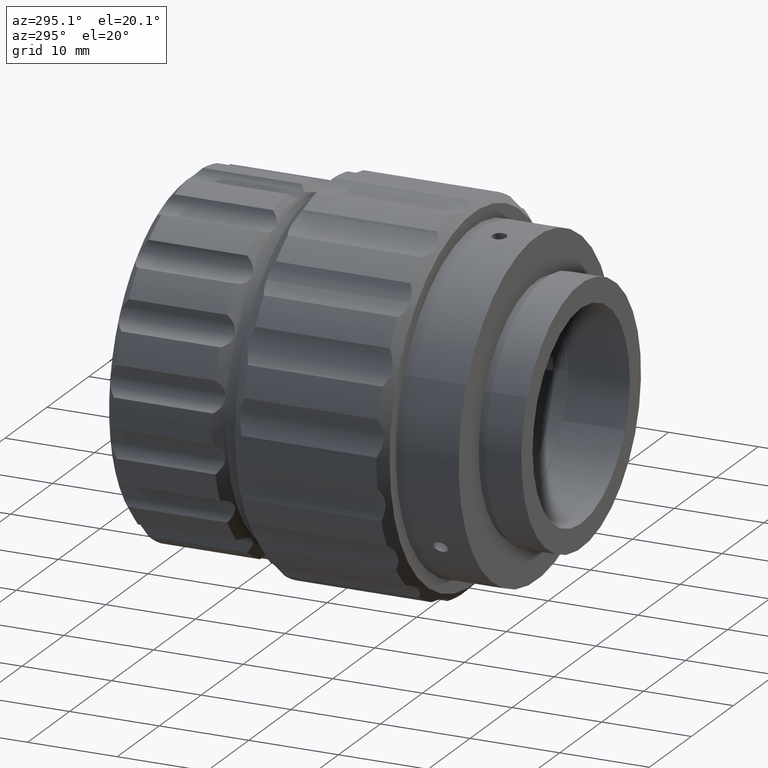
[diagram: clean part render]
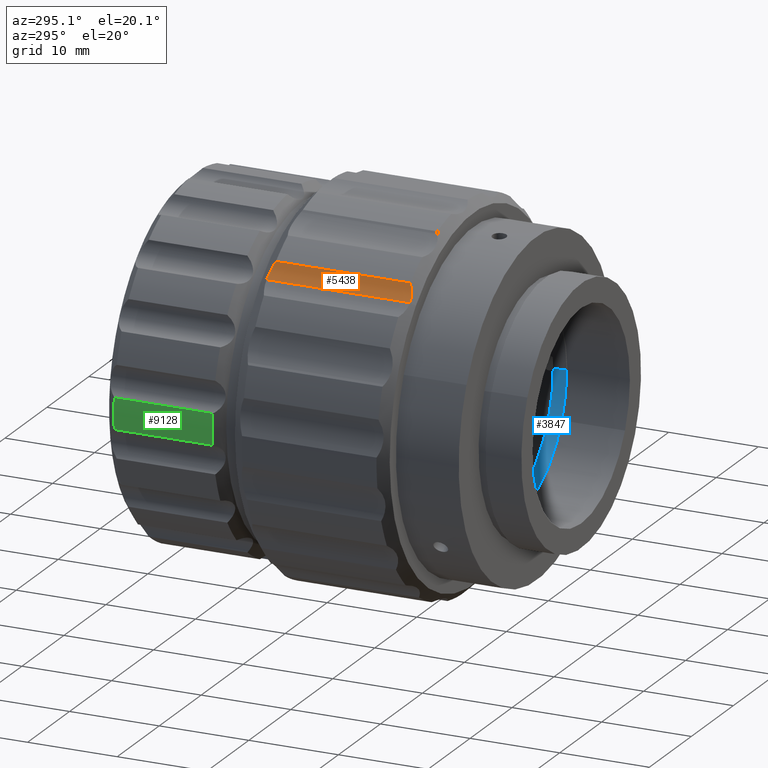
[diagram: same view with three faces highlighted in distinct colors, each labeled with its STEP entity id]
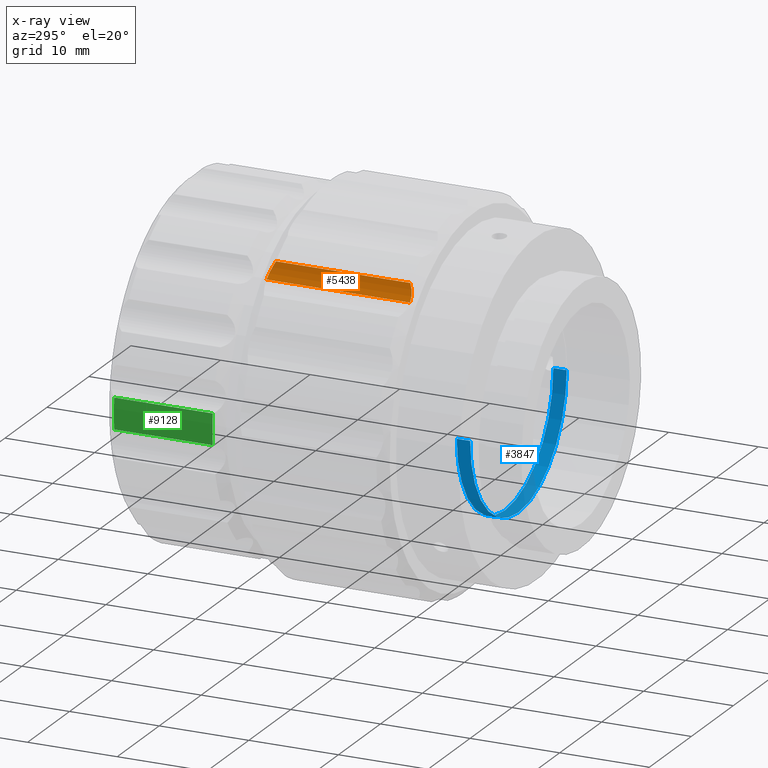
[diagram: x-ray of the same camera — body ghosted, the three highlighted faces saturated]
A machine part, auxiliary view with three faces highlighted in distinct colors.
The next image is the same camera in x-ray (body ghosted, the three faces saturated) — at least one of them is partly hidden behind the body in this view.
Their STEP definitions:

[orange] entity #5438 — the highlighted cylindrical surface (partial cylindrical patch) has radius 5 mm, axis along (0, -1, -0).
#755 = CARTESIAN_POINT ( 'NONE',  ( -7.086710590305400181, -22.70210709760292289, 61.15566884071682807 ) ) ;
#977 = ORIENTED_EDGE ( 'NONE', *, *, #3993, .F. ) ;
#1002 = VERTEX_POINT ( 'NONE', #9922 ) ;
#1020 = CARTESIAN_POINT ( 'NONE',  ( -11.55182014399925805, -5.548755687005420434, 63.42832213261696950 ) ) ;
#1035 = CARTESIAN_POINT ( 'NONE',  ( -7.342518284855121813, -7.226082744462514640, 60.72450665959426885 ) ) ;
#1280 = ORIENTED_EDGE ( 'NONE', *, *, #9576, .F. ) ;
#1531 = VECTOR ( 'NONE', #3739, 1000.000000000000000 ) ;
#1565 = EDGE_CURVE ( 'NONE', #3359, #7291, #3432, .T. ) ;
#1573 = CARTESIAN_POINT ( 'NONE',  ( -6.960196484679470608, -14.54875568700542310, 61.44918288254518046 ) ) ;
#1725 = AXIS2_PLACEMENT_3D ( 'NONE', #1020, #2581, #5652 ) ;
#1827 = CARTESIAN_POINT ( 'NONE',  ( -7.535676544969944324, -7.139301906468576320, 60.44513074661319507 ) ) ;
#2546 = CARTESIAN_POINT ( 'NONE',  ( -7.640146203299665650, -7.105848258127113404, 60.30919233671716029 ) ) ;
#2581 = DIRECTION ( 'NONE',  ( 0.000000000000000000, -1.000000000000000000, -0.000000000000000000 ) ) ;
#2747 = CARTESIAN_POINT ( 'NONE',  ( -7.988616398413262765, -7.048755687005429316, 59.91630762903419338 ) ) ;
#3172 = B_SPLINE_CURVE_WITH_KNOTS ( 'NONE', 3,
 ( #9721, #2747, #5048, #2546, #1827, #1035, #7252, #5816, #5616, #4117 ),
 .UNSPECIFIED., .F., .F.,
 ( 4, 2, 2, 2, 4 ),
 ( 0.002105251945247678131, 0.002629423891572691633, 0.003153595837897702966, 0.003677767784222714734, 0.004201939730547726501 ),
 .UNSPECIFIED. ) ;
#3359 = VERTEX_POINT ( 'NONE', #9271 ) ;
#3425 = VECTOR ( 'NONE', #9254, 1000.000000000000000 ) ;
#3432 = LINE ( 'NONE', #6713, #1531 ) ;
#3600 = B_SPLINE_CURVE_WITH_KNOTS ( 'NONE', 3,
 ( #6919, #755, #5994, #3737, #10053, #4486, #7590, #4432 ),
 .UNSPECIFIED., .F., .F.,
 ( 4, 2, 2, 4 ),
 ( 4.574723477181721011E-07, 0.001052854708797686329, 0.001579053327022678001, 0.002105251945247671626 ),
 .UNSPECIFIED. ) ;
#3737 = CARTESIAN_POINT ( 'NONE',  ( -7.535760267474191032, -22.95831360585714620, 60.44493480536283414 ) ) ;
#3739 = DIRECTION ( 'NONE',  ( 0.000000000000000000, -1.000000000000000000, -0.000000000000000000 ) ) ;
#3993 = EDGE_CURVE ( 'NONE', #6778, #1002, #10027, .T. ) ;
#4117 = CARTESIAN_POINT ( 'NONE',  ( -6.960196484679465279, -7.548755687005425763, 61.44918288254517336 ) ) ;
#4171 = EDGE_CURVE ( 'NONE', #3359, #6778, #3172, .T. ) ;
#4262 = EDGE_LOOP ( 'NONE', ( #6091, #9726, #1280, #977 ) ) ;
#4432 = CARTESIAN_POINT ( 'NONE',  ( -8.115835603153543687, -23.04875568700585120, 59.79596611550180540 ) ) ;
#4486 = CARTESIAN_POINT ( 'NONE',  ( -7.867960086869544512, -23.03724811655154525, 60.04316534937562722 ) ) ;
#4742 = FACE_OUTER_BOUND ( 'NONE', #4262, .T. ) ;
#5048 = CARTESIAN_POINT ( 'NONE',  ( -7.866001391819120059, -7.060509283708027439, 60.04529038164336896 ) ) ;
#5438 = ADVANCED_FACE ( 'NONE', ( #4742 ), #5600, .F. ) ;
#5600 = CYLINDRICAL_SURFACE ( 'NONE', #1725, 4.999999999999992895 ) ;
#5616 = CARTESIAN_POINT ( 'NONE',  ( -7.023272961974723394, -7.472298862520191598, 61.30284479871156122 ) ) ;
#5652 = DIRECTION ( 'NONE',  ( 0.6871969081691016168, 0.000000000000000000, -0.7264712034229761084 ) ) ;
#5816 = CARTESIAN_POINT ( 'NONE',  ( -7.094199903130694373, -7.402814724860927065, 61.15745762860290569 ) ) ;
#5994 = CARTESIAN_POINT ( 'NONE',  ( -7.243644349763088464, -22.82687343875511132, 60.86766424235284489 ) ) ;
#6091 = ORIENTED_EDGE ( 'NONE', *, *, #4171, .F. ) ;
#6713 = CARTESIAN_POINT ( 'NONE',  ( -8.115835603153755073, -5.548755687005420434, 59.79596611550208962 ) ) ;
#6778 = VERTEX_POINT ( 'NONE', #9248 ) ;
#6919 = CARTESIAN_POINT ( 'NONE',  ( -6.960196484679476825, -22.54875568700542843, 61.44918288254516625 ) ) ;
#7252 = CARTESIAN_POINT ( 'NONE',  ( -7.253546361225876815, -7.279775078401297783, 60.86862560847289672 ) ) ;
#7291 = VERTEX_POINT ( 'NONE', #7946 ) ;
#7590 = CARTESIAN_POINT ( 'NONE',  ( -7.988124514806902887, -23.04875568700542132, 59.91677292055827309 ) ) ;
#7946 = CARTESIAN_POINT ( 'NONE',  ( -8.115835603153543687, -23.04875568700585120, 59.79596611550180540 ) ) ;
#9248 = CARTESIAN_POINT ( 'NONE',  ( -6.960196484679465279, -7.548755687005425763, 61.44918288254517336 ) ) ;
#9254 = DIRECTION ( 'NONE',  ( 0.000000000000000000, -1.000000000000000000, -0.000000000000000000 ) ) ;
#9271 = CARTESIAN_POINT ( 'NONE',  ( -8.115835603153483291, -7.048755687004994996, 59.79596611550186225 ) ) ;
#9576 = EDGE_CURVE ( 'NONE', #1002, #7291, #3600, .T. ) ;
#9721 = CARTESIAN_POINT ( 'NONE',  ( -8.115835603153483291, -7.048755687004994996, 59.79596611550186225 ) ) ;
#9726 = ORIENTED_EDGE ( 'NONE', *, *, #1565, .T. ) ;
#9922 = CARTESIAN_POINT ( 'NONE',  ( -6.960196484679476825, -22.54875568700542843, 61.44918288254516625 ) ) ;
#10027 = LINE ( 'NONE', #1573, #3425 ) ;
#10053 = CARTESIAN_POINT ( 'NONE',  ( -7.642140704346006785, -22.99220811342353343, 60.30670107188694118 ) ) ;

[blue] entity #3847 — the highlighted cylindrical surface (partial cylindrical patch) has radius 11.5 mm, axis along (0, -1, 0).
#122 = CARTESIAN_POINT ( 'NONE',  ( 17.47169922217136673, -28.54875568700542843, 44.89688622334482915 ) ) ;
#165 = DIRECTION ( 'NONE',  ( 0.000000000000000000, -1.000000000000000000, 0.000000000000000000 ) ) ;
#284 = DIRECTION ( 'NONE',  ( 0.000000000000000000, -1.000000000000000000, 0.000000000000000000 ) ) ;
#631 = CARTESIAN_POINT ( 'NONE',  ( -5.528297193545712140, -27.04875568700542487, 44.90972666731730811 ) ) ;
#718 = CARTESIAN_POINT ( 'NONE',  ( 17.47169922217136673, -27.04875568700542487, 44.89688622334482915 ) ) ;
#1117 = ORIENTED_EDGE ( 'NONE', *, *, #8828, .T. ) ;
#1398 = CARTESIAN_POINT ( 'NONE',  ( -5.528297193545712140, -28.54875568700542843, 44.90972666731730811 ) ) ;
#1687 = VECTOR ( 'NONE', #8655, 1000.000000000000000 ) ;
#1766 = DIRECTION ( 'NONE',  ( -0.9999998441616122502, 0.000000000000000000, 0.0005582801727166891237 ) ) ;
#1993 = EDGE_CURVE ( 'NONE', #9227, #2068, #4950, .T. ) ;
#2068 = VERTEX_POINT ( 'NONE', #122 ) ;
#2372 = VERTEX_POINT ( 'NONE', #631 ) ;
#2379 = DIRECTION ( 'NONE',  ( 0.000000000000000000, -1.000000000000000000, 0.000000000000000000 ) ) ;
#2471 = ORIENTED_EDGE ( 'NONE', *, *, #1993, .F. ) ;
#2492 = LINE ( 'NONE', #8745, #7421 ) ;
#2653 = DIRECTION ( 'NONE',  ( -0.9999998441616122502, 0.000000000000000000, 0.0005582801727166891237 ) ) ;
#3504 = CYLINDRICAL_SURFACE ( 'NONE', #5014, 11.50000000000000000 ) ;
#3557 = DIRECTION ( 'NONE',  ( -0.9999998441616122502, 0.000000000000000000, 0.0005582801727166891237 ) ) ;
#3561 = CIRCLE ( 'NONE', #7115, 11.50000000000000000 ) ;
#3847 = ADVANCED_FACE ( 'NONE', ( #6732 ), #3504, .F. ) ;
#4022 = ORIENTED_EDGE ( 'NONE', *, *, #5375, .F. ) ;
#4950 = LINE ( 'NONE', #8075, #1687 ) ;
#5014 = AXIS2_PLACEMENT_3D ( 'NONE', #9871, #8850, #3557 ) ;
#5375 = EDGE_CURVE ( 'NONE', #2372, #9227, #9203, .T. ) ;
#6522 = VERTEX_POINT ( 'NONE', #1398 ) ;
#6732 = FACE_OUTER_BOUND ( 'NONE', #8002, .T. ) ;
#6912 = AXIS2_PLACEMENT_3D ( 'NONE', #7235, #2379, #1766 ) ;
#7115 = AXIS2_PLACEMENT_3D ( 'NONE', #8035, #284, #2653 ) ;
#7235 = CARTESIAN_POINT ( 'NONE',  ( 5.971701014312827738, -27.04875568700542487, 44.90330644533106863 ) ) ;
#7421 = VECTOR ( 'NONE', #165, 1000.000000000000000 ) ;
#7704 = EDGE_CURVE ( 'NONE', #2372, #6522, #2492, .T. ) ;
#8002 = EDGE_LOOP ( 'NONE', ( #2471, #4022, #9464, #1117 ) ) ;
#8035 = CARTESIAN_POINT ( 'NONE',  ( 5.971701014312827738, -28.54875568700542843, 44.90330644533106863 ) ) ;
#8075 = CARTESIAN_POINT ( 'NONE',  ( 17.47169922217136673, -28.54875568700542843, 44.89688622334482915 ) ) ;
#8655 = DIRECTION ( 'NONE',  ( 0.000000000000000000, -1.000000000000000000, 0.000000000000000000 ) ) ;
#8745 = CARTESIAN_POINT ( 'NONE',  ( -5.528297193545712140, -28.54875568700542843, 44.90972666731730811 ) ) ;
#8828 = EDGE_CURVE ( 'NONE', #6522, #2068, #3561, .T. ) ;
#8850 = DIRECTION ( 'NONE',  ( 0.000000000000000000, -1.000000000000000000, 0.000000000000000000 ) ) ;
#9203 = CIRCLE ( 'NONE', #6912, 11.50000000000000000 ) ;
#9227 = VERTEX_POINT ( 'NONE', #718 ) ;
#9464 = ORIENTED_EDGE ( 'NONE', *, *, #7704, .T. ) ;
#9871 = CARTESIAN_POINT ( 'NONE',  ( 5.971701014312827738, -28.54875568700542843, 44.90330644533106863 ) ) ;

[green] entity #9128 — the highlighted cylindrical surface (partial cylindrical patch) has radius 19.5 mm, axis along (-0, -1, -0).
#249 = VECTOR ( 'NONE', #4460, 1000.000000000000000 ) ;
#560 = EDGE_CURVE ( 'NONE', #3509, #5643, #3505, .T. ) ;
#676 = CARTESIAN_POINT ( 'NONE',  ( -13.45305572092106772, 7.451244312994560026, 46.61468769361717790 ) ) ;
#762 = CARTESIAN_POINT ( 'NONE',  ( -13.45305572092108193, -3.548755687005437753, 43.19192519704508726 ) ) ;
#776 = EDGE_CURVE ( 'NONE', #3509, #1014, #7157, .T. ) ;
#1014 = VERTEX_POINT ( 'NONE', #676 ) ;
#1107 = DIRECTION ( 'NONE',  ( 0.000000000000000000, 0.000000000000000000, -1.000000000000000000 ) ) ;
#1214 = EDGE_LOOP ( 'NONE', ( #8118, #7029, #4878, #4719 ) ) ;
#1562 = EDGE_CURVE ( 'NONE', #1014, #2158, #7350, .T. ) ;
#1633 = CARTESIAN_POINT ( 'NONE',  ( -13.45305572092107127, 0.9512443129945594711, 46.61468769361717790 ) ) ;
#2066 = CYLINDRICAL_SURFACE ( 'NONE', #2589, 19.50000000000000000 ) ;
#2158 = VERTEX_POINT ( 'NONE', #3511 ) ;
#2353 = EDGE_CURVE ( 'NONE', #2158, #5643, #8285, .T. ) ;
#2589 = AXIS2_PLACEMENT_3D ( 'NONE', #4985, #4294, #3442 ) ;
#3442 = DIRECTION ( 'NONE',  ( 0.000000000000000000, 0.000000000000000000, -1.000000000000000000 ) ) ;
#3505 = CIRCLE ( 'NONE', #9028, 19.50000000000000000 ) ;
#3509 = VERTEX_POINT ( 'NONE', #4165 ) ;
#3511 = CARTESIAN_POINT ( 'NONE',  ( -13.45305572092108193, 7.451244312994560026, 43.19192519704508726 ) ) ;
#3834 = VECTOR ( 'NONE', #7049, 1000.000000000000000 ) ;
#4165 = CARTESIAN_POINT ( 'NONE',  ( -13.45305572092107127, -3.548755687005437753, 46.61468769361717790 ) ) ;
#4294 = DIRECTION ( 'NONE',  ( -0.000000000000000000, -1.000000000000000000, -0.000000000000000000 ) ) ;
#4438 = DIRECTION ( 'NONE',  ( -0.000000000000000000, -1.000000000000000000, -0.000000000000000000 ) ) ;
#4460 = DIRECTION ( 'NONE',  ( 0.000000000000000000, -1.000000000000000000, -0.000000000000000000 ) ) ;
#4493 = DIRECTION ( 'NONE',  ( 0.000000000000000000, 0.000000000000000000, -1.000000000000000000 ) ) ;
#4719 = ORIENTED_EDGE ( 'NONE', *, *, #776, .T. ) ;
#4878 = ORIENTED_EDGE ( 'NONE', *, *, #560, .F. ) ;
#4924 = CARTESIAN_POINT ( 'NONE',  ( 5.971701014312827738, 7.451244312994560026, 44.90330644533106863 ) ) ;
#4985 = CARTESIAN_POINT ( 'NONE',  ( 5.971701014312827738, -9.548755687005433757, 44.90330644533106863 ) ) ;
#5133 = CARTESIAN_POINT ( 'NONE',  ( 5.971701014312827738, -3.548755687005437753, 44.90330644533106863 ) ) ;
#5643 = VERTEX_POINT ( 'NONE', #762 ) ;
#7029 = ORIENTED_EDGE ( 'NONE', *, *, #2353, .T. ) ;
#7049 = DIRECTION ( 'NONE',  ( 0.000000000000000000, 1.000000000000000000, -0.000000000000000000 ) ) ;
#7157 = LINE ( 'NONE', #1633, #3834 ) ;
#7350 = CIRCLE ( 'NONE', #7523, 19.50000000000000000 ) ;
#7509 = CARTESIAN_POINT ( 'NONE',  ( -13.45305572092108193, 0.9512443129945594711, 43.19192519704508726 ) ) ;
#7523 = AXIS2_PLACEMENT_3D ( 'NONE', #4924, #8049, #1107 ) ;
#8049 = DIRECTION ( 'NONE',  ( -0.000000000000000000, -1.000000000000000000, -0.000000000000000000 ) ) ;
#8118 = ORIENTED_EDGE ( 'NONE', *, *, #1562, .T. ) ;
#8285 = LINE ( 'NONE', #7509, #249 ) ;
#9028 = AXIS2_PLACEMENT_3D ( 'NONE', #5133, #4438, #4493 ) ;
#9037 = FACE_OUTER_BOUND ( 'NONE', #1214, .T. ) ;
#9128 = ADVANCED_FACE ( 'NONE', ( #9037 ), #2066, .T. ) ;